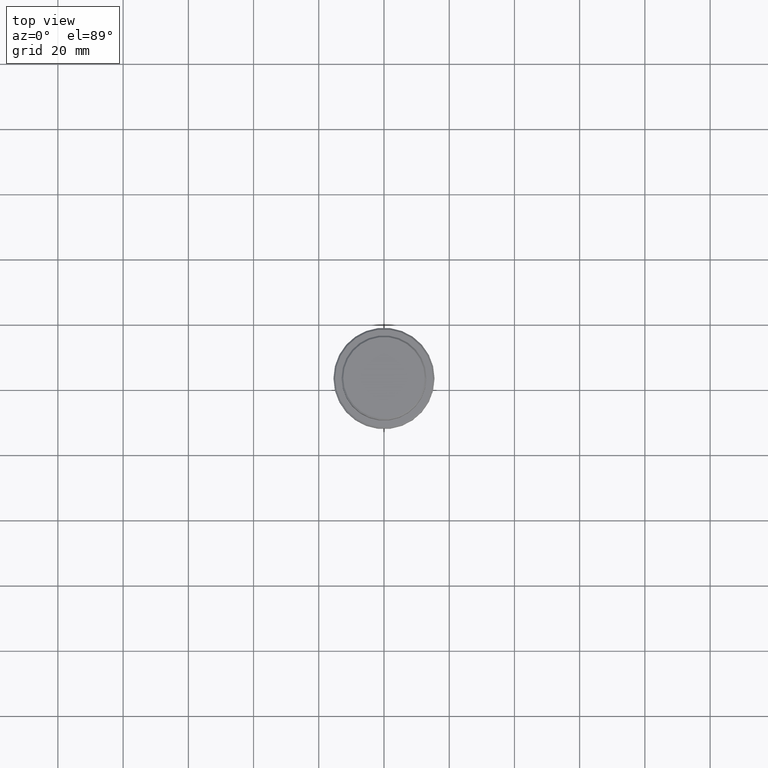
[diagram: clean part render]
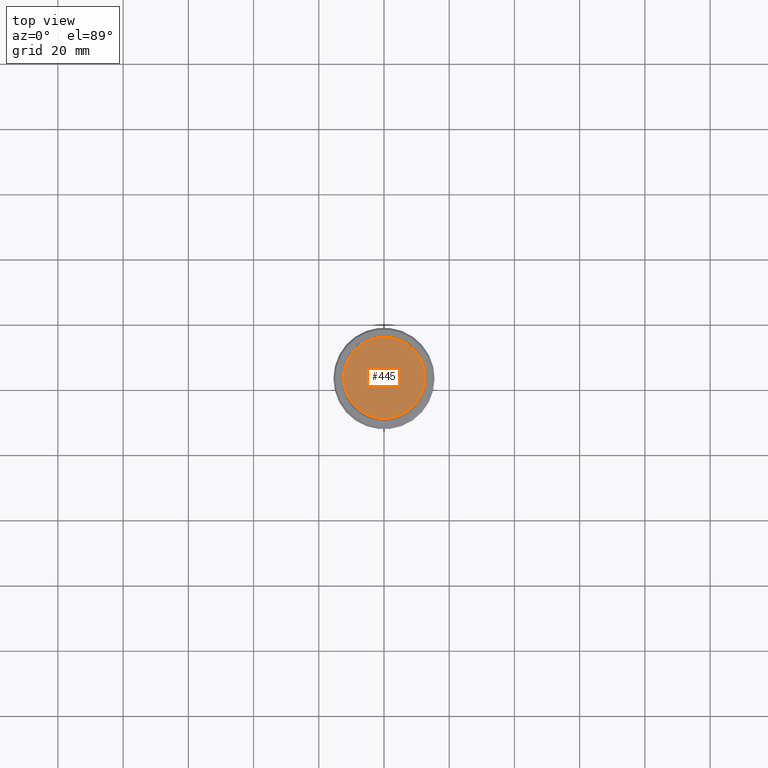
[diagram: same view with one face highlighted and labeled with its STEP entity id]
A machine part, top view. The second image highlights one B-rep face of the part: STEP entity #445.
In plain terms, the highlighted planar face has unit normal (0, -0, 1).
Its self-contained STEP definition (entity closure, byte-faithful):
#59 = PLANE ( 'NONE',  #917 ) ;
#74 = CARTESIAN_POINT ( 'NONE',  ( 12.50000000000004086, 1.561424668912877675E-15, 0.000000000000000000 ) ) ;
#109 = EDGE_LOOP ( 'NONE', ( #125, #792 ) ) ;
#125 = ORIENTED_EDGE ( 'NONE', *, *, #887, .T. ) ;
#147 = EDGE_CURVE ( 'NONE', #1249, #1291, #594, .T. ) ;
#258 = CARTESIAN_POINT ( 'NONE',  ( 0.000000000000000000, 0.000000000000000000, 0.000000000000000000 ) ) ;
#289 = CARTESIAN_POINT ( 'NONE',  ( 0.000000000000000000, 0.000000000000000000, 0.000000000000000000 ) ) ;
#378 = DIRECTION ( 'NONE',  ( -0.000000000000000000, -0.000000000000000000, 1.000000000000000000 ) ) ;
#445 = ADVANCED_FACE ( 'NONE', ( #1246 ), #59, .T. ) ;
#456 = AXIS2_PLACEMENT_3D ( 'NONE', #812, #378, #1365 ) ;
#525 = AXIS2_PLACEMENT_3D ( 'NONE', #289, #958, #1397 ) ;
#588 = DIRECTION ( 'NONE',  ( 0.000000000000000000, -0.000000000000000000, 1.000000000000000000 ) ) ;
#594 = CIRCLE ( 'NONE', #525, 12.50000000000004086 ) ;
#612 = DIRECTION ( 'NONE',  ( 1.000000000000000000, 0.000000000000000000, 0.000000000000000000 ) ) ;
#792 = ORIENTED_EDGE ( 'NONE', *, *, #147, .T. ) ;
#812 = CARTESIAN_POINT ( 'NONE',  ( 0.000000000000000000, 0.000000000000000000, 0.000000000000000000 ) ) ;
#887 = EDGE_CURVE ( 'NONE', #1291, #1249, #1215, .T. ) ;
#917 = AXIS2_PLACEMENT_3D ( 'NONE', #258, #588, #612 ) ;
#935 = CARTESIAN_POINT ( 'NONE',  ( -12.50000000000004086, 0.000000000000000000, 0.000000000000000000 ) ) ;
#958 = DIRECTION ( 'NONE',  ( -0.000000000000000000, -0.000000000000000000, 1.000000000000000000 ) ) ;
#1215 = CIRCLE ( 'NONE', #456, 12.50000000000004086 ) ;
#1246 = FACE_OUTER_BOUND ( 'NONE', #109, .T. ) ;
#1249 = VERTEX_POINT ( 'NONE', #74 ) ;
#1291 = VERTEX_POINT ( 'NONE', #935 ) ;
#1365 = DIRECTION ( 'NONE',  ( 1.000000000000000000, 0.000000000000000000, 0.000000000000000000 ) ) ;
#1397 = DIRECTION ( 'NONE',  ( 1.000000000000000000, 0.000000000000000000, 0.000000000000000000 ) ) ;